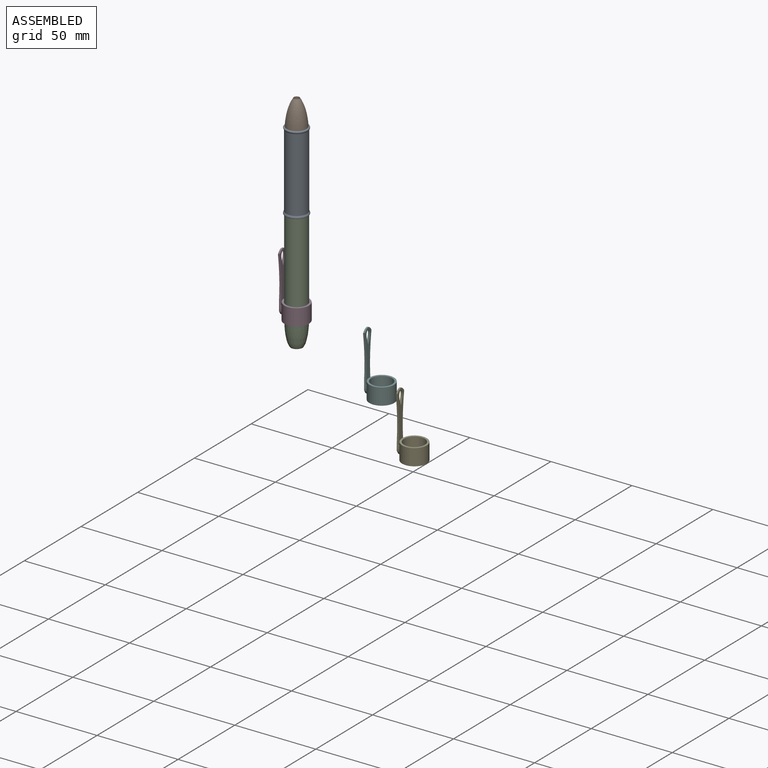
[diagram: assembled view]
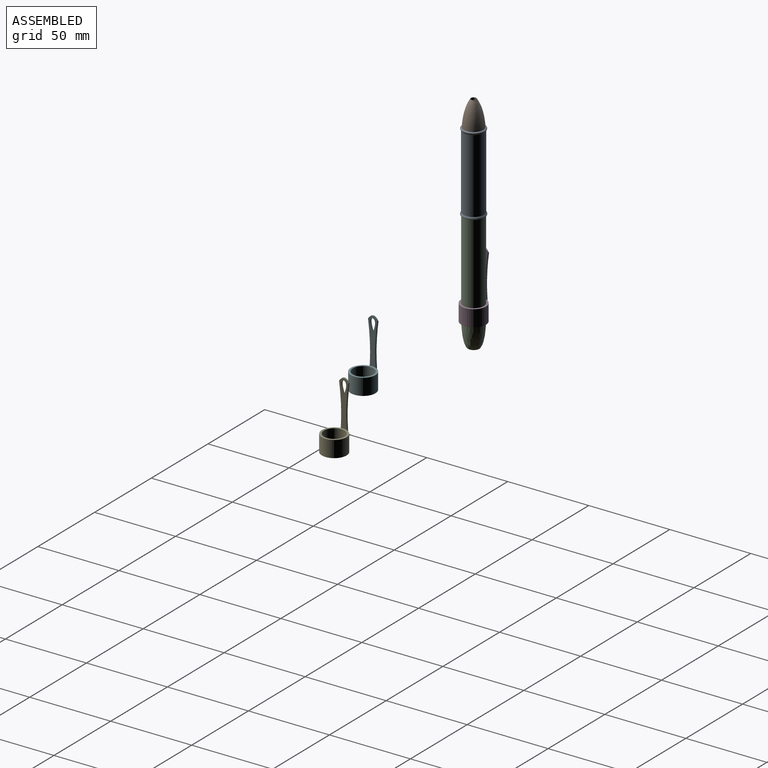
[diagram: assembled view, second angle]
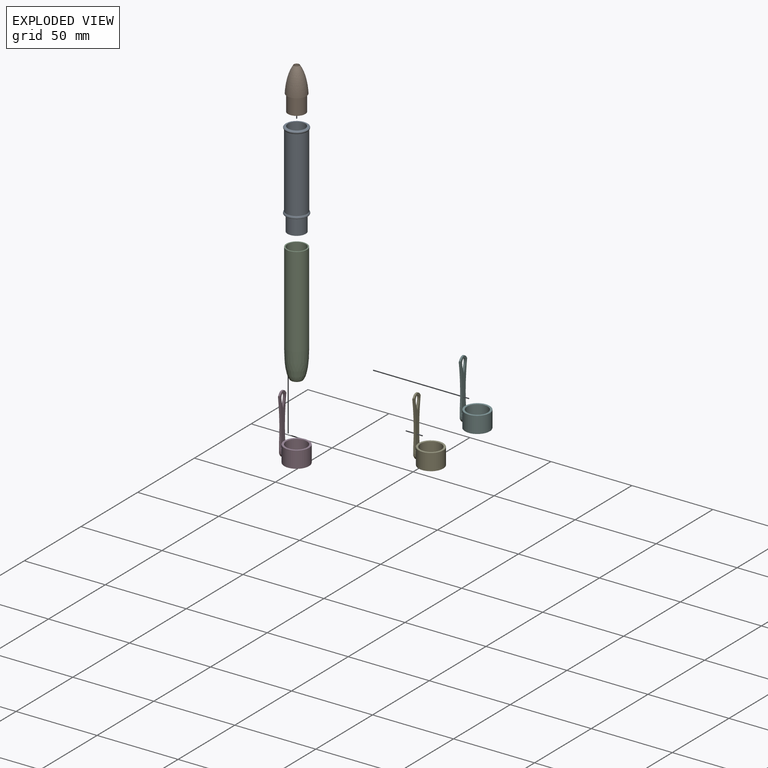
[diagram: exploded view]
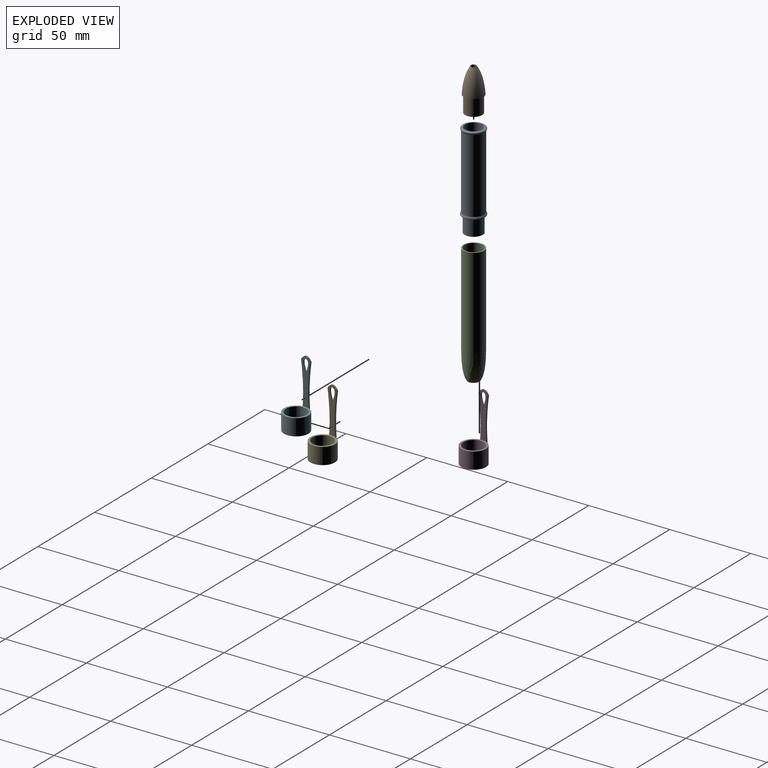
[diagram: exploded view, second angle]
ASSEMBLY  parts=4 mates=3
PART A: 8 faces, bbox 13.8x13.8x58.7 mm
  f0: cylinder r=5.33mm len=10.67mm, axis (0,0,1), area 354.9mm2, adj f1,f7
  f1: cone r=5.33mm half-angle=1.2deg, axis (0,0,1), area 1111.6mm2, adj f0,f2
  f2: cylinder r=4.59mm len=12.45mm, axis (0,0,1), area 359.1mm2, adj f1,f3
  f3: plane 11.18x11.18mm, normal (0,0,-1), area 31.9mm2, adj f2,f4
  f4: cylinder r=5.59mm len=11.18mm, axis (0,0,1), area 342.2mm2, adj f3,f5
  f5: revolved ~13.83x13.83mm, area 117.2mm2, adj f4,f6
  f6: cylinder r=6.41mm len=45.72mm, axis (0,0,1), area 1841.9mm2, adj f5,f7
  f7: revolved ~13.72x13.72mm, area 113.4mm2, adj f0,f6
PART B: 9 faces, bbox 12.1x12.1x26 mm
  f0: cylinder r=1.71mm len=6.27mm, axis (0,0,1), area 67.5mm2, adj f1,f4
  f1: cone r=1.71mm half-angle=61.6deg, axis (0,0,-1), area 42.2mm2, adj f0,f2
  f2: revolved ~10.05x10.05mm, area 244.7mm2, adj f1,f5
  f3: plane 12.07x12.07mm, normal (0,0,-1), area 24.9mm2, adj f4,f7
  f4: revolved ~15.79x12.07mm, area 471mm2, adj f0,f3
  f5: plane 10.05x10.05mm, normal (0,0,1), area 17.2mm2, adj f2,f6
  f6: cylinder r=4.45mm len=10.16mm, axis (0,0,1), area 283.8mm2, adj f5,f8
  f7: cylinder r=5.33mm len=10.67mm, axis (0,0,1), area 340.5mm2, adj f3,f8
  f8: plane 10.67x10.67mm, normal (0,0,-1), area 27.3mm2, adj f6,f7
PART C: 65 faces, bbox 12.7x12.7x73.8 mm
  f0: plane 2.22x1.72mm, normal (0,0,1), area 1.1mm2, adj f7,f26,f56,f57,f60,f62
  f1: plane 2.22x1.72mm, normal (0,0,1), area 1.1mm2, adj f8,f26,f51,f52,f55,f57
  f2: plane 2.22x1.72mm, normal (0,0,1), area 1.1mm2, adj f9,f26,f45,f47,f50,f52
  f3: plane 2.22x1.72mm, normal (0,0,1), area 1.1mm2, adj f10,f26,f30,f31,f46,f47
  f4: plane 2.22x1.72mm, normal (0,0,1), area 1.1mm2, adj f11,f26,f41,f42,f61,f62
  f5: plane 2.22x1.72mm, normal (0,0,1), area 1.1mm2, adj f12,f15,f26,f34,f36,f39
  f6: plane 2.22x1.72mm, normal (0,0,1), area 1.1mm2, adj f13,f26,f29,f31,f35,f36
  f7: cylinder r=4.02mm len=11.43mm, axis (0,0,1), area 17.1mm2, adj f0,f16,f56,f60
  f8: cylinder r=4.02mm len=11.43mm, axis (0,0,1), area 17.1mm2, adj f1,f16,f51,f55
  f9: cylinder r=4.02mm len=11.43mm, axis (0,0,1), area 17.1mm2, adj f2,f16,f45,f50
  f10: cylinder r=4.02mm len=11.43mm, axis (0,0,1), area 17.1mm2, adj f3,f16,f30,f46
  f11: cylinder r=4.02mm len=11.43mm, axis (0,0,1), area 17.1mm2, adj f4,f16,f41,f61
  f12: cylinder r=4.02mm len=11.43mm, axis (0,0,1), area 17.1mm2, adj f5,f16,f34,f39
  f13: cylinder r=4.02mm len=11.43mm, axis (0,0,1), area 17.1mm2, adj f6,f16,f29,f35
  f14: plane 11.43x0.56mm, normal (-0.71,0.71,0), area 9.1mm2, adj f15,f16,f17,f18,f19,f20
  f15: plane 11.41x1.17mm, normal (0.71,0.71,0), area 17.3mm2, adj f5,f14,f17,f19,f39
  f16: plane 11.18x11.18mm, normal (0,0,1), area 48.9mm2, adj f7,f8,f9,f10,f11,f12,f13,f14
  f17: plane 1.9x1.68mm, normal (0.53,-0.53,0.66), area 1.8mm2, adj f14,f15,f18,f39
  f18: plane 1.92x1.17mm, normal (0.71,0.71,0), area 1.6mm2, adj f14,f16,f17,f39
  f19: plane 2.22x1.72mm, normal (0,0,1), area 1.1mm2, adj f14,f15,f20,f26,f40,f42
  f20: cylinder r=4.02mm len=11.43mm, axis (0,0,1), area 17.1mm2, adj f14,f16,f19,f40
  f21: cylinder r=5.59mm len=44.45mm, axis (0,0,1), area 1560.7mm2, adj f22,f28
  f22: plane 12.7x12.7mm, normal (0,0,1), area 28.6mm2, adj f21,f23
  f23: cylinder r=6.35mm len=55.88mm, axis (0,0,1), area 2229.5mm2, adj f22,f24
  f24: revolved ~17.96x12.7mm, area 654mm2, adj f23,f25
  f25: plane 7.11x7.11mm, normal (0,0,-1), area 8.1mm2, adj f24,f26
  f26: cone r=3.14mm half-angle=0.3deg, axis (0,0,-1), area 129.5mm2, adj f0,f1,f2,f3,f4,f5,f6,f19
  f27: cylinder r=5.59mm len=11.18mm, axis (0,0,1), area 356.7mm2, adj f16,f28
  f28: revolved ~11.18x11.18mm, area 48.2mm2, adj f21,f27
  f29: plane 11.43x0.56mm, normal (-0.71,-0.71,0), area 9.1mm2, adj f6,f13,f16,f31,f32,f33
  f30: plane 11.43x0.56mm, normal (0.71,0.71,0), area 7.7mm2, adj f3,f10,f16,f31,f32,f33
  f31: plane 11.41x1.17mm, normal (-0.71,0.71,0), area 17.3mm2, adj f3,f6,f29,f30,f32
  f32: plane 1.9x1.68mm, normal (0.53,0.53,0.66), area 1.8mm2, adj f29,f30,f31,f33
  f33: plane 1.92x1.17mm, normal (-0.71,0.71,0), area 1.6mm2, adj f16,f29,f30,f32
  f34: plane 11.43x0.8mm, normal (-1,0,0), area 9.1mm2, adj f5,f12,f16,f36,f37,f38
  f35: plane 11.43x0.8mm, normal (1,0,0), area 7.7mm2, adj f6,f13,f16,f36,f37,f38
  f36: plane 11.41x1.65mm, normal (0,1,0), area 17.3mm2, adj f5,f6,f34,f35,f37
  f37: plane 1.9x1.65mm, normal (0.75,0,0.66), area 1.8mm2, adj f34,f35,f36,f38
  f38: plane 1.92x1.65mm, normal (0,1,0), area 1.6mm2, adj f16,f34,f35,f37
  f39: plane 11.43x0.56mm, normal (0.71,-0.71,0), area 7.7mm2, adj f5,f12,f15,f16,f17,f18
  f40: plane 11.43x0.8mm, normal (0,-1,0), area 7.7mm2, adj f16,f19,f20,f42,f43,f44
  f41: plane 11.43x0.8mm, normal (0,1,0), area 9.1mm2, adj f4,f11,f16,f42,f43,f44
  f42: plane 11.41x1.65mm, normal (1,0,0), area 17.3mm2, adj f4,f19,f40,f41,f43
  f43: plane 1.9x1.65mm, normal (0,-0.75,0.66), area 1.8mm2, adj f40,f41,f42,f44
  f44: plane 1.92x1.65mm, normal (1,0,0), area 1.6mm2, adj f16,f40,f41,f43
  f45: plane 11.43x0.8mm, normal (0,1,0), area 7.7mm2, adj f2,f9,f16,f47,f48,f49
  f46: plane 11.43x0.8mm, normal (0,-1,0), area 9.1mm2, adj f3,f10,f16,f47,f48,f49
  f47: plane 11.41x1.65mm, normal (-1,0,0), area 17.3mm2, adj f2,f3,f45,f46,f48
  f48: plane 1.9x1.65mm, normal (0,0.75,0.66), area 1.8mm2, adj f45,f46,f47,f49
  f49: plane 1.92x1.65mm, normal (-1,0,0), area 1.6mm2, adj f16,f45,f46,f48
  f50: plane 11.43x0.56mm, normal (0.71,-0.71,0), area 9.1mm2, adj f2,f9,f16,f52,f53,f54
  f51: plane 11.43x0.56mm, normal (-0.71,0.71,0), area 7.7mm2, adj f1,f8,f16,f52,f53,f54
  f52: plane 11.41x1.17mm, normal (-0.71,-0.71,0), area 17.3mm2, adj f1,f2,f50,f51,f53
  f53: plane 1.9x1.68mm, normal (-0.53,0.53,0.66), area 1.8mm2, adj f50,f51,f52,f54
  f54: plane 1.92x1.17mm, normal (-0.71,-0.71,0), area 1.6mm2, adj f16,f50,f51,f53
  f55: plane 11.43x0.8mm, normal (1,0,0), area 9.1mm2, adj f1,f8,f16,f57,f58,f59
  f56: plane 11.43x0.8mm, normal (-1,0,0), area 7.7mm2, adj f0,f7,f16,f57,f58,f59
  f57: plane 11.41x1.65mm, normal (0,-1,0), area 17.3mm2, adj f0,f1,f55,f56,f58
  f58: plane 1.9x1.65mm, normal (-0.75,0,0.66), area 1.8mm2, adj f55,f56,f57,f59
  f59: plane 1.92x1.65mm, normal (0,-1,0), area 1.6mm2, adj f16,f55,f56,f58
  f60: plane 11.43x0.56mm, normal (0.71,0.71,0), area 9.1mm2, adj f0,f7,f16,f62,f63,f64
  f61: plane 11.43x0.56mm, normal (-0.71,-0.71,0), area 7.7mm2, adj f4,f11,f16,f62,f63,f64
  f62: plane 11.41x1.17mm, normal (0.71,-0.71,0), area 17.3mm2, adj f0,f4,f60,f61,f63
  f63: plane 1.9x1.68mm, normal (-0.53,-0.53,0.66), area 1.8mm2, adj f60,f61,f62,f64
  f64: plane 1.92x1.17mm, normal (0.71,-0.71,0), area 1.6mm2, adj f16,f60,f61,f63
PART D: 22 faces, bbox 17.5x15.6x38.3 mm
  f0: cylinder r=6.4mm len=12.79mm, axis (0,0,-1), area 408.3mm2, adj f2,f3
  f1: cylinder r=7.62mm len=15.24mm, axis (0,0,-1), area 467.7mm2, adj f2,f3,f4,f5,f6,f7,f9,f10
  f2: plane 15.24x15.24mm, normal (0,0,1), area 53.9mm2, adj f0,f1
  f3: plane 15.24x15.24mm, normal (0,0,-1), area 53.9mm2, adj f0,f1
  f4: extruded ~4.49x2.29mm, area 12mm2, adj f1,f5,f7,f17
  f5: plane 1.92x1.51mm, normal (0,1,0), area 2.9mm2, adj f1,f4,f9,f16
  f6: plane 1.94x0.02mm, normal (0,0,1), area 0mm2, adj f1,f7,f10,f18
  f7: plane 1.93x1.51mm, normal (0,-1,0), area 2.9mm2, adj f1,f4,f6,f18
  f8: plane 36.61x6.02mm, normal (-1,0,0), area 114.1mm2, adj f9,f10,f12,f13,f16,f17,f18,f19
  f9: extruded ~30.96x2.3mm, area 40mm2, adj f1,f5,f8,f14,f15,f16,f19,f21
  f10: extruded ~30.96x2.3mm, area 40mm2, adj f1,f6,f8,f11,f15,f18,f20,f21
  f11: extruded ~2.84x2.27mm, area 3.4mm2, adj f10,f14,f15,f20
  f12: extruded ~8.36x1.54mm, area 11.8mm2, adj f8,f13,f15
  f13: extruded ~8.36x1.54mm, area 11.8mm2, adj f8,f12,f15
  f14: extruded ~2.84x2.27mm, area 3.4mm2, adj f9,f11,f15,f19
  f15: plane 31.66x5.69mm, normal (1,0,0), area 100.1mm2, adj f9,f10,f11,f12,f13,f14,f21
  f16: plane 5.61x0.42mm, normal (-0.71,0.71,0), area 1.8mm2, adj f5,f8,f9,f17
  f17: bspline ~4.74x2.73mm, area 3.3mm2, adj f4,f8,f16,f18
  f18: plane 5.4x0.41mm, normal (-0.71,-0.71,0), area 1.7mm2, adj f6,f7,f8,f10,f17
  f19: bspline ~3.09x2.85mm, area 2.1mm2, adj f8,f9,f14,f20
  f20: bspline ~3.19x3.02mm, area 2.1mm2, adj f8,f10,f11,f19
  f21: plane 4.28x1mm, normal (0.71,0,0.71), area 4.7mm2, adj f1,f9,f10,f15
PLACE A t=(-118.98,-2.2,61.22)mm
PLACE B rot(axis=(0,0,-1),0deg) t=(-62.83,-2.2,96.62)mm
PLACE C t=(-92.28,-2.2,19.62)mm
PLACE D t=(-92.28,-2.2,18.9)mm
MATE cylindrical D.f0 <-> C.f7  axis (0,0,-1) through (-80.31,-2.2,-22.94)mm
MATE cylindrical A.f0 <-> C.f7  axis (0,0,1) through (-80.31,-2.2,31.54)mm
MATE cylindrical B.f0 <-> A.f0  axis (0,0,1) through (-80.31,-2.2,80.22)mm
